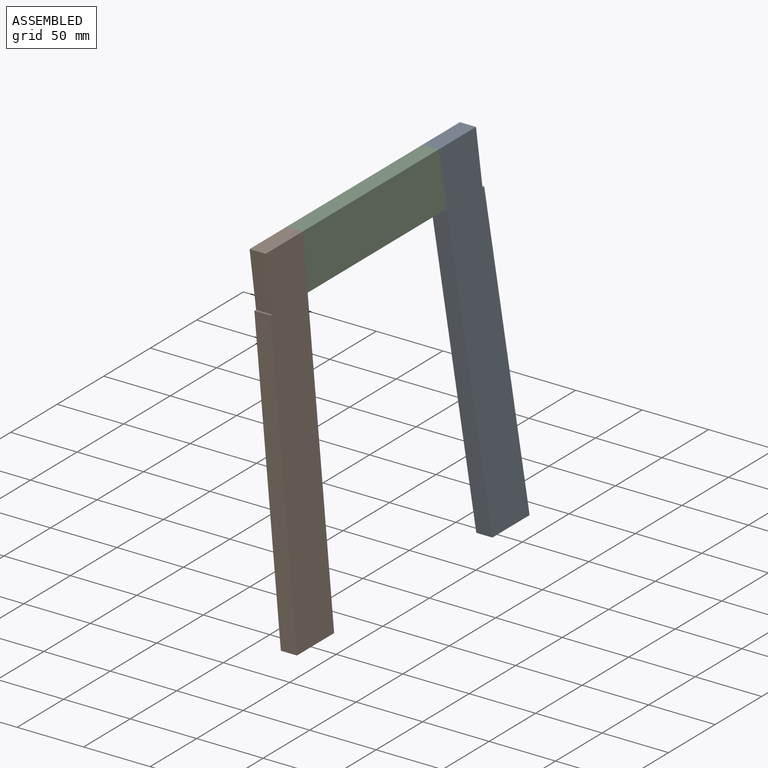
[diagram: assembled view]
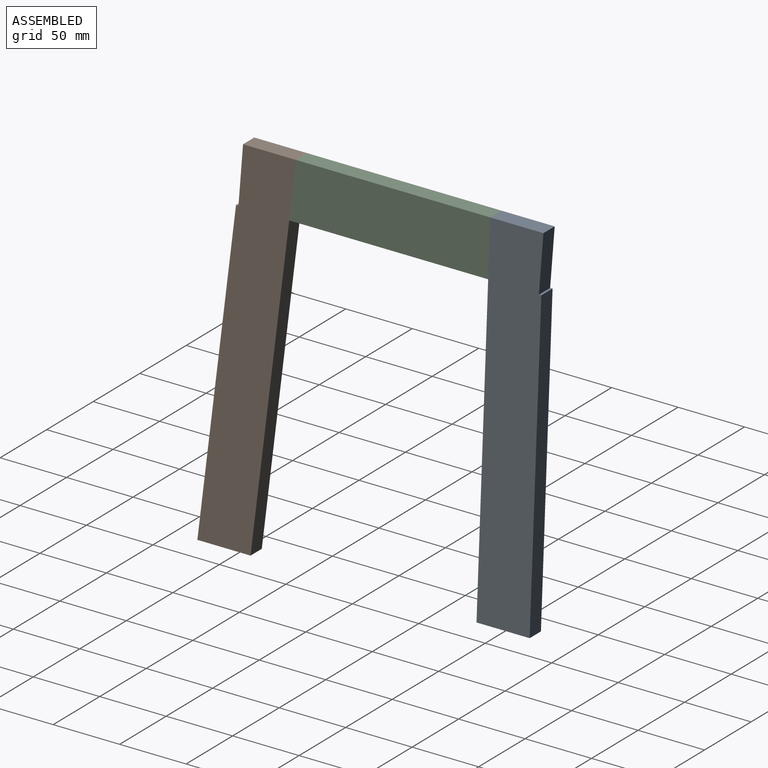
[diagram: assembled view, second angle]
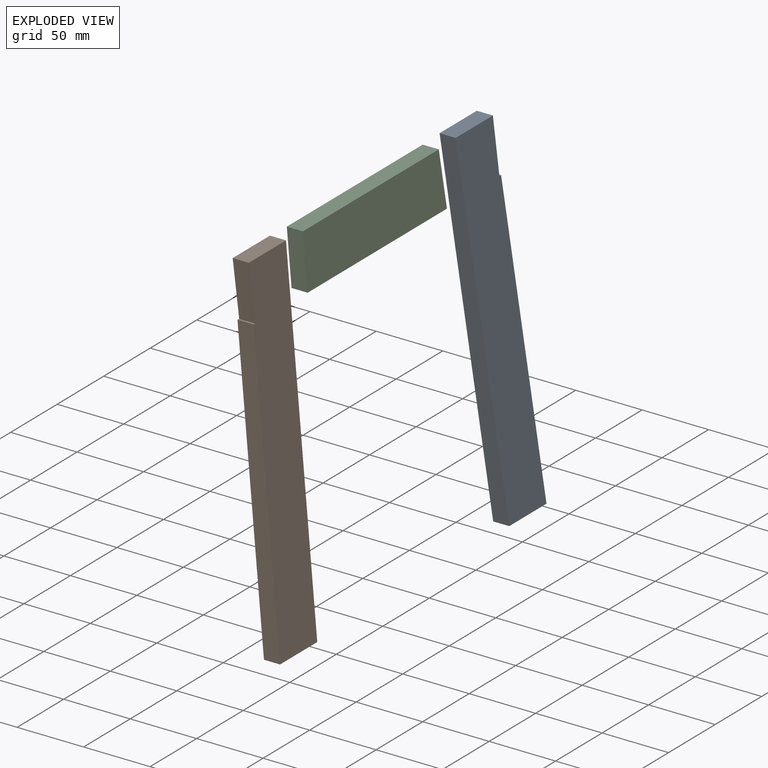
[diagram: exploded view]
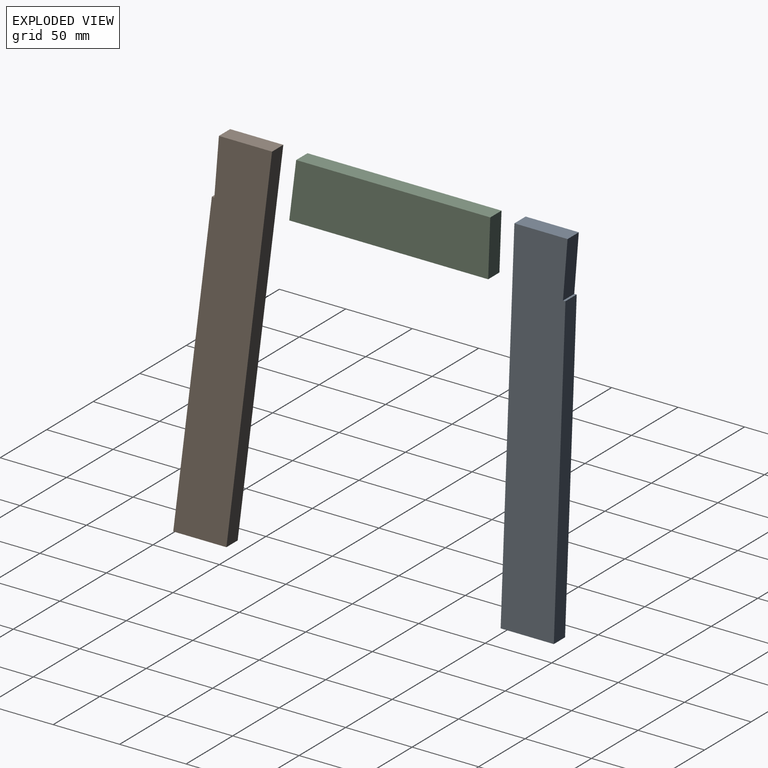
[diagram: exploded view, second angle]
ASSEMBLY  parts=3 mates=2
PART A: 8 faces, bbox 44x52x260 mm
  f0: plane 40x17mm, normal (0,1,0), area 483.6mm2, adj f1,f5,f6,f7
  f1: plane 12.1x1.84mm, normal (0,-0.05,1), area 22.3mm2, adj f0,f2,f6,f7
  f2: plane 220.09x39.11mm, normal (0,1,0.05), area 2663.7mm2, adj f1,f3,f6,f7
  f3: plane 40x12.09mm, normal (0,0,-1), area 483.6mm2, adj f2,f4,f6,f7
  f4: plane 260x44.01mm, normal (0,-1,-0.05), area 3146.8mm2, adj f3,f5,f6,f7
  f5: plane 40x12.09mm, normal (0,0,1), area 483.6mm2, adj f0,f4,f6,f7
  f6: plane 260x52mm, normal (0.99,0,0.12), area 10441mm2, adj f0,f1,f2,f3,f4,f5
  f7: plane 260x52mm, normal (-0.99,0,-0.12), area 10441mm2, adj f0,f1,f2,f3,f4,f5
PART B: 8 faces, bbox 44x52x260 mm
  f0: plane 40x17mm, normal (0,-1,0), area 483.6mm2, adj f1,f5,f6,f7
  f1: plane 12.1x1.84mm, normal (0,0.05,1), area 22.3mm2, adj f0,f2,f6,f7
  f2: plane 220.09x39.11mm, normal (0,-1,0.05), area 2663.7mm2, adj f1,f3,f6,f7
  f3: plane 40x12.09mm, normal (0,0,-1), area 483.6mm2, adj f2,f4,f6,f7
  f4: plane 260x44.01mm, normal (0,1,-0.05), area 3146.8mm2, adj f3,f5,f6,f7
  f5: plane 40x12.09mm, normal (0,0,1), area 483.6mm2, adj f0,f4,f6,f7
  f6: plane 260x52mm, normal (0.99,0,0.12), area 10441mm2, adj f0,f1,f2,f3,f4,f5
  f7: plane 260x52mm, normal (-0.99,0,-0.12), area 10441mm2, adj f0,f1,f2,f3,f4,f5
PART C: 6 faces, bbox 17x149.7x39.7 mm
  f0: plane 39.7x16.97mm, normal (0,-1,0.05), area 480.5mm2, adj f2,f3,f4,f5
  f1: plane 39.7x16.97mm, normal (0,1,0.05), area 480.5mm2, adj f2,f3,f4,f5
  f2: plane 149.66x39.7mm, normal (-0.99,0,-0.12), area 5913.3mm2, adj f0,f1,f3,f4
  f3: plane 149.66x12.09mm, normal (0,0,-1), area 1809.5mm2, adj f0,f1,f2,f5
  f4: plane 146x12.09mm, normal (0,0,1), area 1765.2mm2, adj f0,f1,f2,f5
  f5: plane 149.66x39.7mm, normal (0.99,0,0.12), area 5913.3mm2, adj f0,f1,f3,f4
PLACE A at identity
PLACE B at identity
PLACE C at identity fixed
MATE fastened B.f4 <-> C.f0  axis (0,1,-0.05) through (149.95,-73,0)mm
MATE fastened A.f4 <-> C.f1  axis (0,-1,-0.05) through (149.95,73,0)mm
